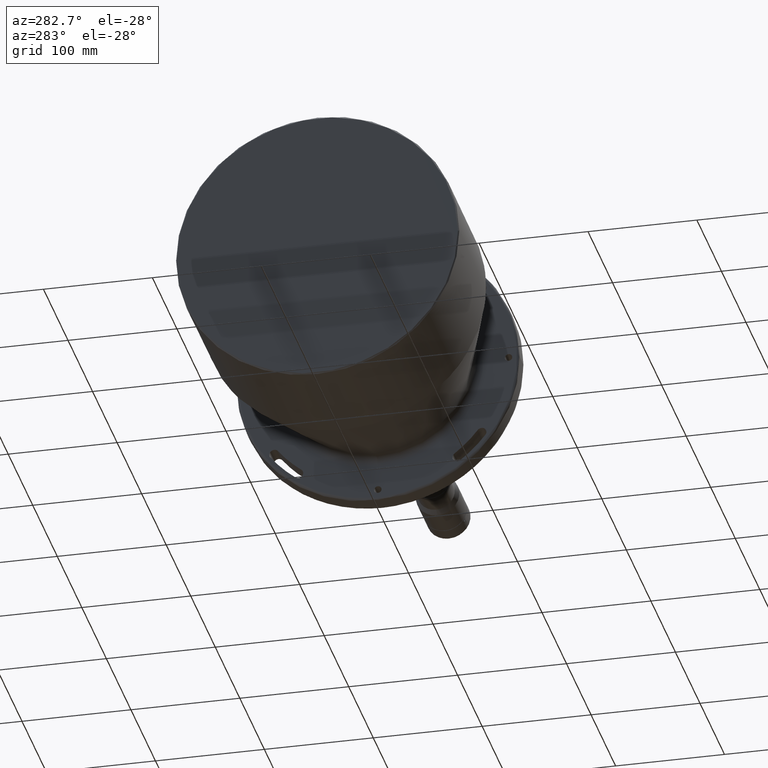
[diagram: clean part render]
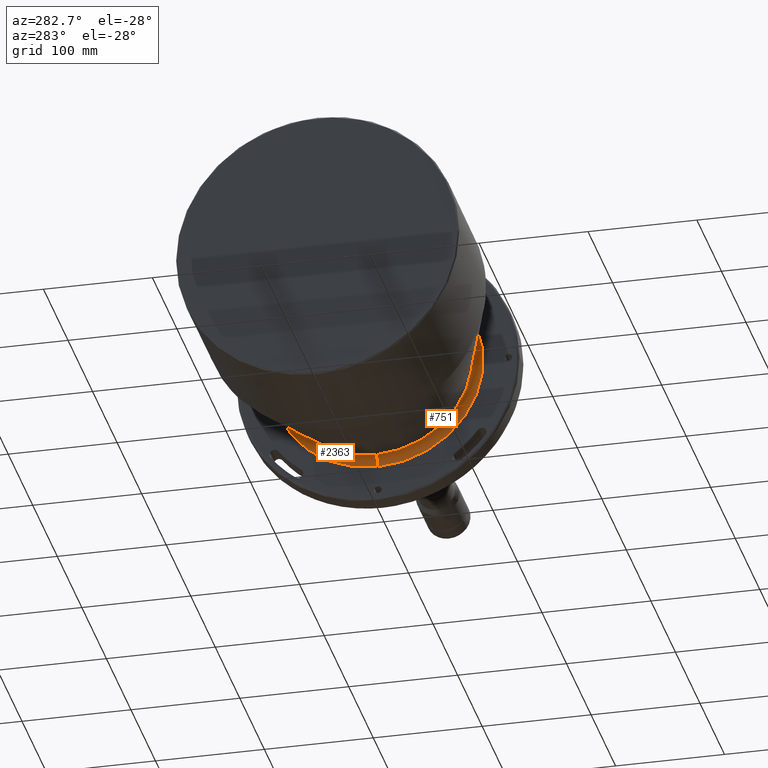
[diagram: same view with one multi-face feature highlighted, each face labeled with its STEP entity id]
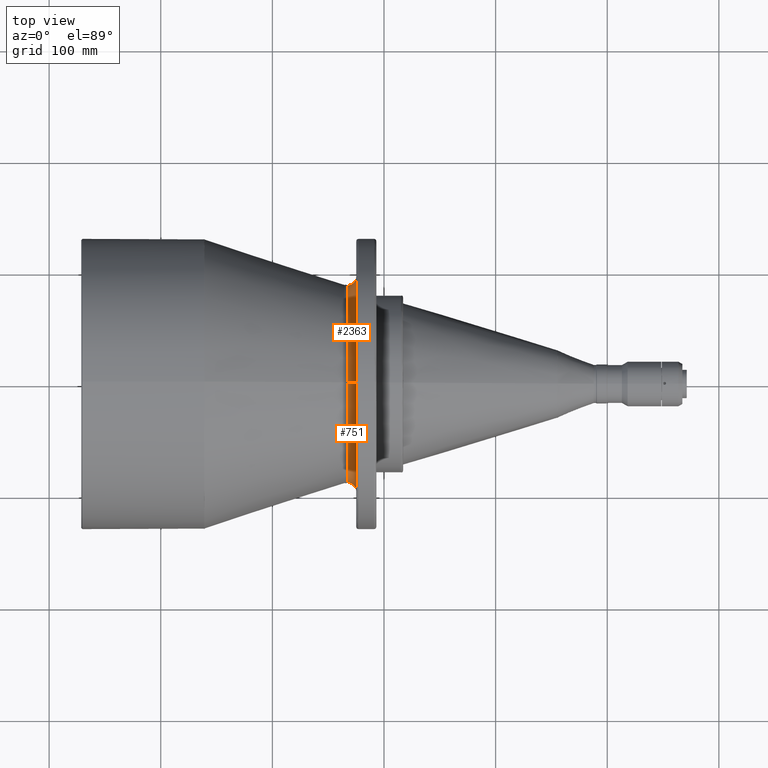
[diagram: same view with one multi-face feature highlighted, each face labeled with its STEP entity id]
A machine part, auxiliary view. The highlighted faces form ONE feature: a constant-radius fillet chain: 2 tangent blend faces with common blend radius 8 mm. The faces share edges in the B-rep.
A second angle (top view) of the same feature is appended — it is thin or edge-on in the first view.
Their STEP definitions:
[1] entity #2363 (Torus):
#17 = CIRCLE ( 'NONE', #2690, 8.000000000197445600 ) ;
#22 = EDGE_CURVE ( 'NONE', #2875, #2530, #17, .T. ) ;
#142 = CARTESIAN_POINT ( 'NONE',  ( -24.85000000049363300, 0.0000000000000000000, -96.77648791664294900 ) ) ;
#258 = CARTESIAN_POINT ( 'NONE',  ( -32.85000000069107500, 0.0000000000000000000, 0.0000000000000000000 ) ) ;
#271 = DIRECTION ( 'NONE',  ( 0.0000000000000000000, -1.000000000000000000, 0.0000000000000000000 ) ) ;
#426 = CIRCLE ( 'NONE', #2754, 96.77648791510999600 ) ;
#477 = CARTESIAN_POINT ( 'NONE',  ( -32.84999999769401300, 0.0000000000000000000, -88.77648791848788800 ) ) ;
#582 = CARTESIAN_POINT ( 'NONE',  ( -32.85000000069107500, 1.185170161617166200E-014, 96.77648791817590300 ) ) ;
#584 = CARTESIAN_POINT ( 'NONE',  ( -32.84999999743007500, 0.0000000000000000000, 88.77648791845751900 ) ) ;
#661 = TOROIDAL_SURFACE ( 'NONE', #2898, 96.77648791817590300, 8.000000000197442100 ) ;
#857 = DIRECTION ( 'NONE',  ( 0.0000000000000000000, 1.000000000000000000, -1.224646799147353200E-016 ) ) ;
#943 = AXIS2_PLACEMENT_3D ( 'NONE', #1898, #1096, #3152 ) ;
#954 = AXIS2_PLACEMENT_3D ( 'NONE', #1762, #271, #3297 ) ;
#981 = ORIENTED_EDGE ( 'NONE', *, *, #2735, .T. ) ;
#1096 = DIRECTION ( 'NONE',  ( -1.000000000000000000, 0.0000000000000000000, -0.0000000000000000000 ) ) ;
#1208 = CIRCLE ( 'NONE', #954, 8.000000000197445600 ) ;
#1244 = VERTEX_POINT ( 'NONE', #142 ) ;
#1282 = DIRECTION ( 'NONE',  ( 0.0000000000000000000, 0.0000000000000000000, -1.000000000000000000 ) ) ;
#1385 = DIRECTION ( 'NONE',  ( 0.0000000000000000000, 0.0000000000000000000, -1.000000000000000000 ) ) ;
#1606 = ORIENTED_EDGE ( 'NONE', *, *, #22, .F. ) ;
#1613 = CARTESIAN_POINT ( 'NONE',  ( -24.85000000049363300, 1.185170161598393100E-014, 96.77648791664294900 ) ) ;
#1752 = CIRCLE ( 'NONE', #943, 88.77648791830564800 ) ;
#1762 = CARTESIAN_POINT ( 'NONE',  ( -32.85000000069107500, 0.0000000000000000000, -96.77648791817590300 ) ) ;
#1798 = FACE_OUTER_BOUND ( 'NONE', #2948, .T. ) ;
#1850 = EDGE_CURVE ( 'NONE', #1244, #2875, #426, .T. ) ;
#1855 = EDGE_CURVE ( 'NONE', #2530, #2752, #1752, .T. ) ;
#1898 = CARTESIAN_POINT ( 'NONE',  ( -32.84999999611034800, 0.0000000000000000000, 0.0000000000000000000 ) ) ;
#2122 = DIRECTION ( 'NONE',  ( 0.0000000000000000000, 1.224646799147352700E-016, 1.000000000000000000 ) ) ;
#2192 = ORIENTED_EDGE ( 'NONE', *, *, #1850, .F. ) ;
#2363 = ADVANCED_FACE ( 'NONE', ( #1798 ), #661, .F. ) ;
#2530 = VERTEX_POINT ( 'NONE', #584 ) ;
#2546 = DIRECTION ( 'NONE',  ( 1.000000000000000000, 0.0000000000000000000, 0.0000000000000000000 ) ) ;
#2690 = AXIS2_PLACEMENT_3D ( 'NONE', #582, #857, #2122 ) ;
#2735 = EDGE_CURVE ( 'NONE', #1244, #2752, #1208, .T. ) ;
#2752 = VERTEX_POINT ( 'NONE', #477 ) ;
#2754 = AXIS2_PLACEMENT_3D ( 'NONE', #2904, #2886, #1385 ) ;
#2875 = VERTEX_POINT ( 'NONE', #1613 ) ;
#2886 = DIRECTION ( 'NONE',  ( 1.000000000000000000, 0.0000000000000000000, 0.0000000000000000000 ) ) ;
#2898 = AXIS2_PLACEMENT_3D ( 'NONE', #258, #2546, #1282 ) ;
#2904 = CARTESIAN_POINT ( 'NONE',  ( -24.85000000049363300, 0.0000000000000000000, 0.0000000000000000000 ) ) ;
#2948 = EDGE_LOOP ( 'NONE', ( #1606, #2192, #981, #3207 ) ) ;
#3152 = DIRECTION ( 'NONE',  ( 0.0000000000000000000, 0.0000000000000000000, 1.000000000000000000 ) ) ;
#3207 = ORIENTED_EDGE ( 'NONE', *, *, #1855, .F. ) ;
#3297 = DIRECTION ( 'NONE',  ( 0.0000000000000000000, 0.0000000000000000000, -1.000000000000000000 ) ) ;
[2] entity #751 (Torus):
#17 = CIRCLE ( 'NONE', #2690, 8.000000000197445600 ) ;
#22 = EDGE_CURVE ( 'NONE', #2875, #2530, #17, .T. ) ;
#54 = TOROIDAL_SURFACE ( 'NONE', #2575, 96.77648791817590300, 8.000000000197442100 ) ;
#142 = CARTESIAN_POINT ( 'NONE',  ( -24.85000000049363300, 0.0000000000000000000, -96.77648791664294900 ) ) ;
#243 = DIRECTION ( 'NONE',  ( 0.0000000000000000000, 0.0000000000000000000, 1.000000000000000000 ) ) ;
#271 = DIRECTION ( 'NONE',  ( 0.0000000000000000000, -1.000000000000000000, 0.0000000000000000000 ) ) ;
#446 = EDGE_CURVE ( 'NONE', #2875, #1244, #2778, .T. ) ;
#477 = CARTESIAN_POINT ( 'NONE',  ( -32.84999999769401300, 0.0000000000000000000, -88.77648791848788800 ) ) ;
#582 = CARTESIAN_POINT ( 'NONE',  ( -32.85000000069107500, 1.185170161617166200E-014, 96.77648791817590300 ) ) ;
#584 = CARTESIAN_POINT ( 'NONE',  ( -32.84999999743007500, 0.0000000000000000000, 88.77648791845751900 ) ) ;
#728 = DIRECTION ( 'NONE',  ( 1.000000000000000000, 0.0000000000000000000, 0.0000000000000000000 ) ) ;
#751 = ADVANCED_FACE ( 'NONE', ( #1321 ), #54, .F. ) ;
#805 = DIRECTION ( 'NONE',  ( 0.0000000000000000000, 0.0000000000000000000, -1.000000000000000000 ) ) ;
#808 = ORIENTED_EDGE ( 'NONE', *, *, #1376, .F. ) ;
#857 = DIRECTION ( 'NONE',  ( 0.0000000000000000000, 1.000000000000000000, -1.224646799147353200E-016 ) ) ;
#954 = AXIS2_PLACEMENT_3D ( 'NONE', #1762, #271, #3297 ) ;
#1208 = CIRCLE ( 'NONE', #954, 8.000000000197445600 ) ;
#1244 = VERTEX_POINT ( 'NONE', #142 ) ;
#1321 = FACE_OUTER_BOUND ( 'NONE', #2646, .T. ) ;
#1376 = EDGE_CURVE ( 'NONE', #2752, #2530, #3301, .T. ) ;
#1383 = ORIENTED_EDGE ( 'NONE', *, *, #446, .F. ) ;
#1538 = CARTESIAN_POINT ( 'NONE',  ( -32.84999999611034800, 0.0000000000000000000, 0.0000000000000000000 ) ) ;
#1613 = CARTESIAN_POINT ( 'NONE',  ( -24.85000000049363300, 1.185170161598393100E-014, 96.77648791664294900 ) ) ;
#1687 = ORIENTED_EDGE ( 'NONE', *, *, #2735, .F. ) ;
#1762 = CARTESIAN_POINT ( 'NONE',  ( -32.85000000069107500, 0.0000000000000000000, -96.77648791817590300 ) ) ;
#1773 = DIRECTION ( 'NONE',  ( 0.0000000000000000000, 0.0000000000000000000, -1.000000000000000000 ) ) ;
#1859 = ORIENTED_EDGE ( 'NONE', *, *, #22, .T. ) ;
#2122 = DIRECTION ( 'NONE',  ( 0.0000000000000000000, 1.224646799147352700E-016, 1.000000000000000000 ) ) ;
#2254 = CARTESIAN_POINT ( 'NONE',  ( -24.85000000049363300, 0.0000000000000000000, 0.0000000000000000000 ) ) ;
#2321 = AXIS2_PLACEMENT_3D ( 'NONE', #1538, #3287, #243 ) ;
#2332 = CARTESIAN_POINT ( 'NONE',  ( -32.85000000069107500, 0.0000000000000000000, 0.0000000000000000000 ) ) ;
#2530 = VERTEX_POINT ( 'NONE', #584 ) ;
#2575 = AXIS2_PLACEMENT_3D ( 'NONE', #2332, #2923, #805 ) ;
#2646 = EDGE_LOOP ( 'NONE', ( #1383, #1859, #808, #1687 ) ) ;
#2690 = AXIS2_PLACEMENT_3D ( 'NONE', #582, #857, #2122 ) ;
#2735 = EDGE_CURVE ( 'NONE', #1244, #2752, #1208, .T. ) ;
#2752 = VERTEX_POINT ( 'NONE', #477 ) ;
#2778 = CIRCLE ( 'NONE', #2781, 96.77648791510999600 ) ;
#2781 = AXIS2_PLACEMENT_3D ( 'NONE', #2254, #728, #1773 ) ;
#2875 = VERTEX_POINT ( 'NONE', #1613 ) ;
#2923 = DIRECTION ( 'NONE',  ( 1.000000000000000000, 0.0000000000000000000, 0.0000000000000000000 ) ) ;
#3287 = DIRECTION ( 'NONE',  ( -1.000000000000000000, -0.0000000000000000000, -0.0000000000000000000 ) ) ;
#3297 = DIRECTION ( 'NONE',  ( 0.0000000000000000000, 0.0000000000000000000, -1.000000000000000000 ) ) ;
#3301 = CIRCLE ( 'NONE', #2321, 88.77648791830564800 ) ;